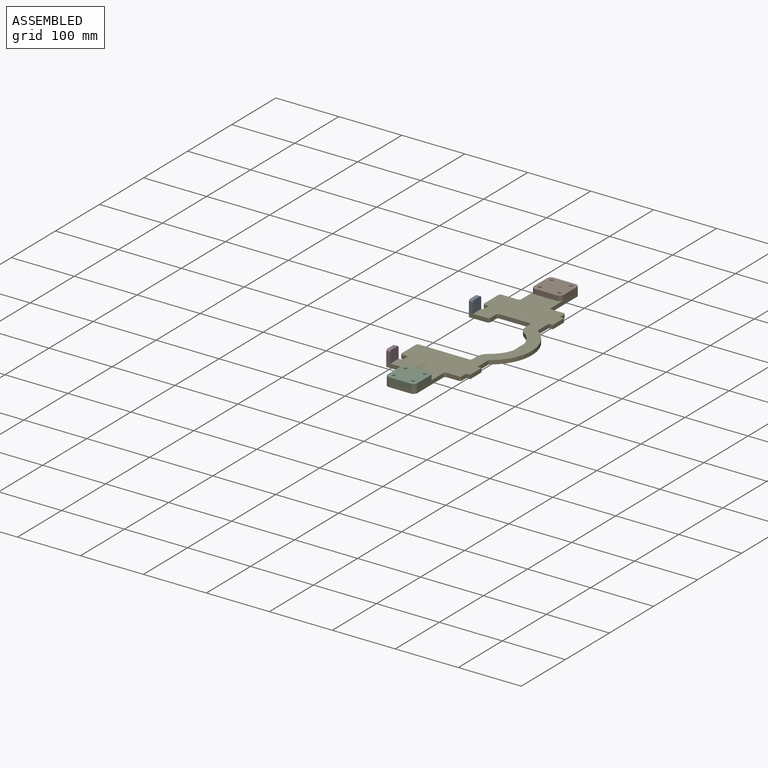
[diagram: assembled view]
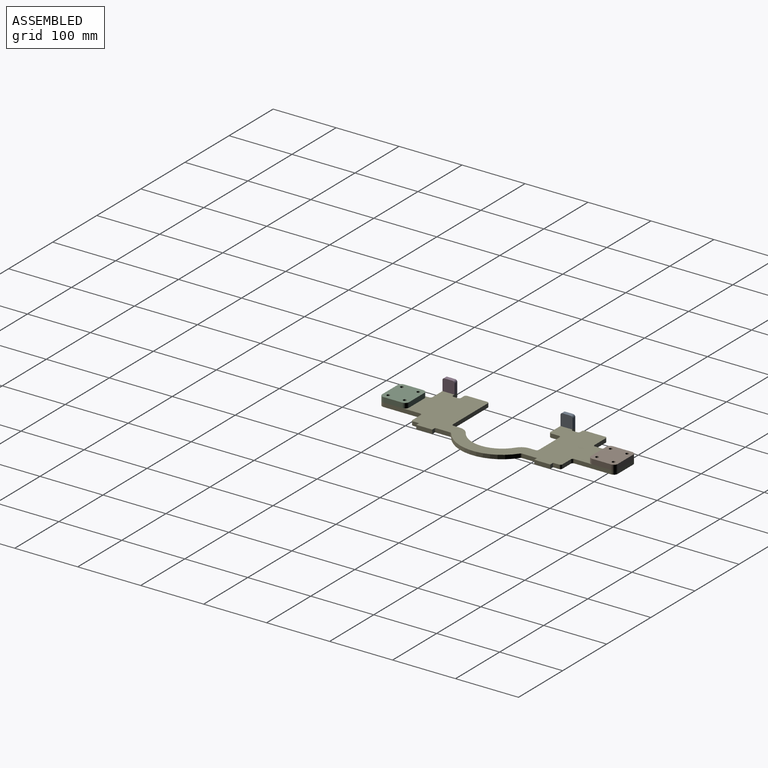
[diagram: assembled view, second angle]
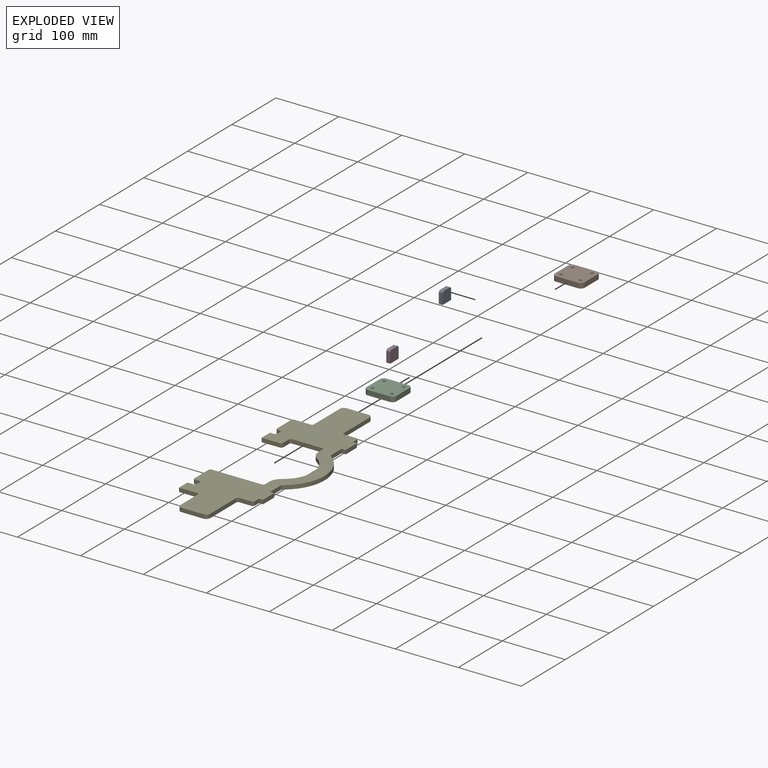
[diagram: exploded view]
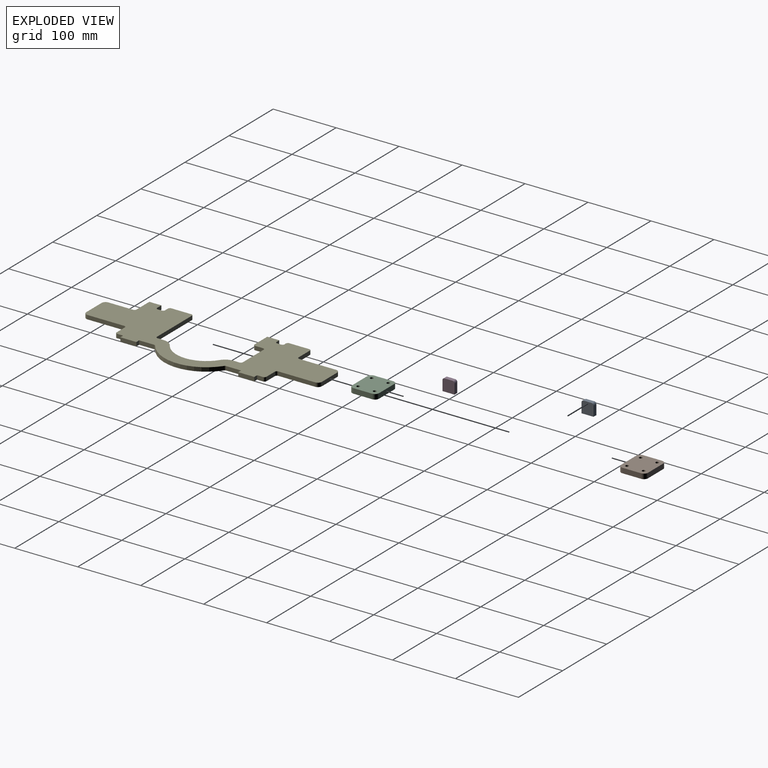
[diagram: exploded view, second angle]
ASSEMBLY  parts=5 mates=4
PART A: 8 faces, bbox 19.1x6.4x19.1 mm
  f0: plane 12.7x6.35mm, normal (0,0,1), area 80.6mm2, adj f4,f5,f6,f7
  f1: plane 15.88x6.35mm, normal (-1,0,0), area 100.8mm2, adj f2,f4,f5,f6
  f2: plane 19.05x6.35mm, normal (0,0,-1), area 121mm2, adj f1,f3,f4,f5
  f3: plane 15.88x6.35mm, normal (1,0,0), area 100.8mm2, adj f2,f4,f5,f7
  f4: plane 19.05x19.05mm, normal (0,-1,0), area 358.6mm2, adj f0,f1,f2,f3,f6,f7
  f5: plane 19.05x19.05mm, normal (0,1,0), area 358.6mm2, adj f0,f1,f2,f3,f6,f7
  f6: cylinder r=3.17mm len=6.35mm, axis (0,1,0), area 31.7mm2, adj f0,f1,f4,f5
  f7: cylinder r=3.17mm len=6.35mm, axis (0,-1,0), area 31.7mm2, adj f0,f3,f4,f5
PART B: 14 faces, bbox 47.2x42.6x7.9 mm
  f0: plane 34.54x7.94mm, normal (0,1,0), area 274.2mm2, adj f1,f11,f12,f13
  f1: cylinder r=6.35mm len=7.94mm, axis (0,0,-1), area 79.2mm2, adj f0,f2,f12,f13
  f2: plane 29.9x7.94mm, normal (-1,0,0), area 237.3mm2, adj f1,f3,f12,f13
  f3: cylinder r=6.35mm len=7.94mm, axis (0,0,-1), area 79.2mm2, adj f2,f4,f12,f13
  f4: plane 34.54x7.94mm, normal (0,-1,0), area 274.2mm2, adj f3,f5,f12,f13
  f5: cylinder r=6.35mm len=7.94mm, axis (0,0,-1), area 79.2mm2, adj f4,f6,f12,f13
  f6: plane 29.9x7.94mm, normal (1,0,0), area 237.3mm2, adj f5,f11,f12,f13
  f7: cylinder r=2.58mm len=7.94mm, axis (0,0,-1), area 128.7mm2, adj f12,f13
  f8: cylinder r=2.58mm len=7.94mm, axis (0,0,-1), area 128.7mm2, adj f12,f13
  f9: cylinder r=2.58mm len=7.94mm, axis (0,0,-1), area 128.7mm2, adj f12,f13
  f10: cylinder r=2.58mm len=7.94mm, axis (0,0,-1), area 128.7mm2, adj f12,f13
  f11: cylinder r=6.35mm len=7.94mm, axis (0,0,-1), area 79.2mm2, adj f0,f6,f12,f13
  f12: plane 47.24x42.6mm, normal (0,0,1), area 1894.2mm2, adj f0,f1,f2,f3,f4,f5,f6,f7
  f13: plane 47.24x42.6mm, normal (0,0,-1), area 1894.2mm2, adj f0,f1,f2,f3,f4,f5,f6,f7
PART C: same geometry as B
PART D: same geometry as A
PART E: 66 faces, bbox 134.6x374.1x6.4 mm
  f0: plane 19.05x6.35mm, normal (0,-1,0), area 121mm2, adj f61,f62,f63,f64
  f1: plane 9.53x6.35mm, normal (1,0,0), area 60.5mm2, adj f2,f62,f63,f64
  f2: plane 6.35x6.35mm, normal (0,-1,0), area 40.3mm2, adj f1,f3,f62,f63
  f3: plane 25.4x6.35mm, normal (1,0,0), area 161.3mm2, adj f2,f4,f62,f63
  f4: plane 6.35x6.35mm, normal (0,1,0), area 40.3mm2, adj f3,f5,f62,f63
  f5: plane 23.72x6.35mm, normal (1,0,0), area 150.6mm2, adj f4,f6,f62,f63
  f6: cylinder r=3.17mm len=6.35mm, axis (0,0,-1), area 19.4mm2, adj f5,f7,f62,f63
  f7: cylinder r=66.67mm len=109.28mm, axis (0,0,-1), area 813.3mm2, adj f6,f8,f62,f63
  f8: cylinder r=3.17mm len=6.35mm, axis (0,0,-1), area 19.4mm2, adj f7,f9,f62,f63
  f9: plane 23.72x6.35mm, normal (1,0,0), area 150.6mm2, adj f8,f10,f62,f63
  f10: plane 6.35x6.35mm, normal (0,-1,0), area 40.3mm2, adj f9,f11,f62,f63
  f11: plane 25.4x6.35mm, normal (1,0,0), area 161.3mm2, adj f10,f12,f62,f63
  f12: plane 6.35x6.35mm, normal (0,1,0), area 40.3mm2, adj f11,f13,f62,f63
  f13: plane 9.53x6.35mm, normal (1,0,0), area 60.5mm2, adj f12,f62,f63,f65
  f14: plane 19.05x6.35mm, normal (0,1,0), area 121mm2, adj f15,f62,f63,f65
  f15: cylinder r=3.17mm len=6.35mm, axis (0,0,-1), area 31.7mm2, adj f14,f16,f62,f63
  f16: plane 58.47x6.35mm, normal (1,0,0), area 371.3mm2, adj f15,f17,f62,f63
  f17: cylinder r=6.35mm len=6.35mm, axis (0,0,-1), area 63.3mm2, adj f16,f18,f62,f63
  f18: plane 34.54x6.35mm, normal (0,1,0), area 219.4mm2, adj f17,f19,f62,f63
  f19: cylinder r=6.35mm len=6.35mm, axis (0,0,-1), area 63.3mm2, adj f18,f20,f62,f63
  f20: plane 58.47x6.35mm, normal (-1,0,0), area 371.3mm2, adj f19,f21,f62,f63
  f21: cylinder r=3.17mm len=6.35mm, axis (0,0,-1), area 31.7mm2, adj f20,f22,f62,f63
  f22: plane 25.78x6.35mm, normal (0,1,0), area 163.7mm2, adj f21,f23,f62,f63
  f23: cylinder r=3.17mm len=6.35mm, axis (0,0,-1), area 31.7mm2, adj f22,f24,f62,f63
  f24: plane 31.75x6.35mm, normal (-1,0,0), area 201.6mm2, adj f23,f25,f62,f63
  f25: cylinder r=3.17mm len=6.35mm, axis (0,0,-1), area 31.7mm2, adj f24,f26,f62,f63
  f26: plane 6.35x3.18mm, normal (0,-1,0), area 20.2mm2, adj f25,f27,f62,f63
  f27: cylinder r=3.17mm len=6.35mm, axis (0,0,-1), area 31.7mm2, adj f26,f28,f62,f63
  f28: plane 6.35x6.35mm, normal (-1,0,0), area 40.3mm2, adj f27,f29,f62,f63
  f29: cylinder r=3.17mm len=6.35mm, axis (0,0,-1), area 31.7mm2, adj f28,f30,f62,f63
  f30: plane 6.35x6.35mm, normal (0,1,0), area 40.3mm2, adj f29,f31,f62,f63
  f31: plane 19.05x6.35mm, normal (-1,0,0), area 121mm2, adj f30,f32,f62,f63
  f32: plane 28.96x6.35mm, normal (0,-1,0), area 183.9mm2, adj f31,f33,f62,f63
  f33: cylinder r=3.17mm len=6.35mm, axis (0,0,-1), area 31.7mm2, adj f32,f34,f62,f63
  f34: plane 12.7x6.35mm, normal (1,0,0), area 80.6mm2, adj f33,f35,f62,f63
  f35: cylinder r=3.17mm len=6.35mm, axis (0,0,-1), area 31.7mm2, adj f34,f36,f62,f63
  f36: plane 47.24x6.35mm, normal (0,-1,0), area 300mm2, adj f35,f37,f62,f63
  f37: cylinder r=3.17mm len=6.35mm, axis (0,0,-1), area 31.7mm2, adj f36,f38,f62,f63
  f38: plane 9.53x6.35mm, normal (-1,0,0), area 60.5mm2, adj f37,f39,f62,f63
  f39: cylinder r=19.05mm len=15.88mm, axis (0,0,-1), area 119.2mm2, adj f38,f40,f62,f63
  f40: cylinder r=47.62mm len=79.38mm, axis (0,0,-1), area 595.8mm2, adj f39,f41,f62,f63
  f41: cylinder r=19.05mm len=15.88mm, axis (0,0,-1), area 119.2mm2, adj f40,f42,f62,f63
  f42: plane 9.53x6.35mm, normal (-1,0,0), area 60.5mm2, adj f41,f43,f62,f63
  f43: cylinder r=3.17mm len=6.35mm, axis (0,0,-1), area 31.7mm2, adj f42,f44,f62,f63
  f44: plane 79.38x6.35mm, normal (0,1,0), area 504mm2, adj f43,f45,f62,f63
  f45: cylinder r=3.17mm len=6.35mm, axis (0,0,-1), area 31.7mm2, adj f44,f46,f62,f63
  f46: plane 31.75x6.35mm, normal (-1,0,0), area 201.6mm2, adj f45,f47,f62,f63
  f47: cylinder r=3.17mm len=6.35mm, axis (0,0,-1), area 31.7mm2, adj f46,f48,f62,f63
  f48: plane 6.35x6.35mm, normal (0,-1,0), area 40.3mm2, adj f47,f49,f62,f63
  f49: cylinder r=3.17mm len=6.35mm, axis (0,0,-1), area 31.7mm2, adj f48,f50,f62,f63
  f50: plane 6.35x6.35mm, normal (-1,0,0), area 40.3mm2, adj f49,f51,f62,f63
  f51: cylinder r=3.17mm len=6.35mm, axis (0,0,-1), area 31.7mm2, adj f50,f52,f62,f63
  f52: plane 9.53x6.35mm, normal (0,1,0), area 60.5mm2, adj f51,f53,f62,f63
  f53: plane 19.05x6.35mm, normal (-1,0,0), area 121mm2, adj f52,f54,f62,f63
  f54: plane 28.96x6.35mm, normal (0,-1,0), area 183.9mm2, adj f53,f55,f62,f63
  f55: cylinder r=3.17mm len=6.35mm, axis (0,0,-1), area 31.7mm2, adj f54,f56,f62,f63
  f56: plane 39.42x6.35mm, normal (-1,0,0), area 250.3mm2, adj f55,f57,f62,f63
  f57: cylinder r=6.35mm len=6.35mm, axis (0,0,-1), area 63.3mm2, adj f56,f58,f62,f63
  f58: plane 34.54x6.35mm, normal (0,-1,0), area 219.4mm2, adj f57,f59,f62,f63
  f59: cylinder r=6.35mm len=6.35mm, axis (0,0,-1), area 63.3mm2, adj f58,f60,f62,f63
  f60: plane 58.47x6.35mm, normal (1,0,0), area 371.3mm2, adj f59,f61,f62,f63
  f61: cylinder r=3.17mm len=6.35mm, axis (0,0,-1), area 31.7mm2, adj f0,f60,f62,f63
  f62: plane 374.12x134.59mm, normal (0,0,1), area 21295.7mm2, adj f0,f1,f2,f3,f4,f5,f6,f7
  f63: plane 374.12x134.59mm, normal (0,0,-1), area 21295.7mm2, adj f0,f1,f2,f3,f4,f5,f6,f7
  f64: cylinder r=3.17mm len=6.35mm, axis (0,0,-1), area 31.7mm2, adj f0,f1,f62,f63
  f65: cylinder r=3.17mm len=6.35mm, axis (0,0,-1), area 31.7mm2, adj f13,f14,f62,f63
PLACE A rot(axis=(0,0,1),90deg) t=(0,-19.05,6.35)mm
PLACE B rot(axis=(0,0,1),180deg) t=(-77.28,61.28,6.35)mm
PLACE C t=(188.78,-197.8,6.35)mm
PLACE D rot(axis=(0,0,1),90deg) t=(0,-206.38,6.35)mm
PLACE E at identity
MATE fastened B.f4 <-> E.f18  axis (0,1,0) through (55.75,118.8,6.35)mm
MATE fastened A.f5 <-> E.f31  axis (-1,0,0) through (0,-9.53,6.35)mm
MATE fastened D.f5 <-> E.f53  axis (-1,0,0) through (0,-196.85,6.35)mm
MATE fastened C.f4 <-> E.f58  axis (0,-1,0) through (55.75,-255.32,6.35)mm
